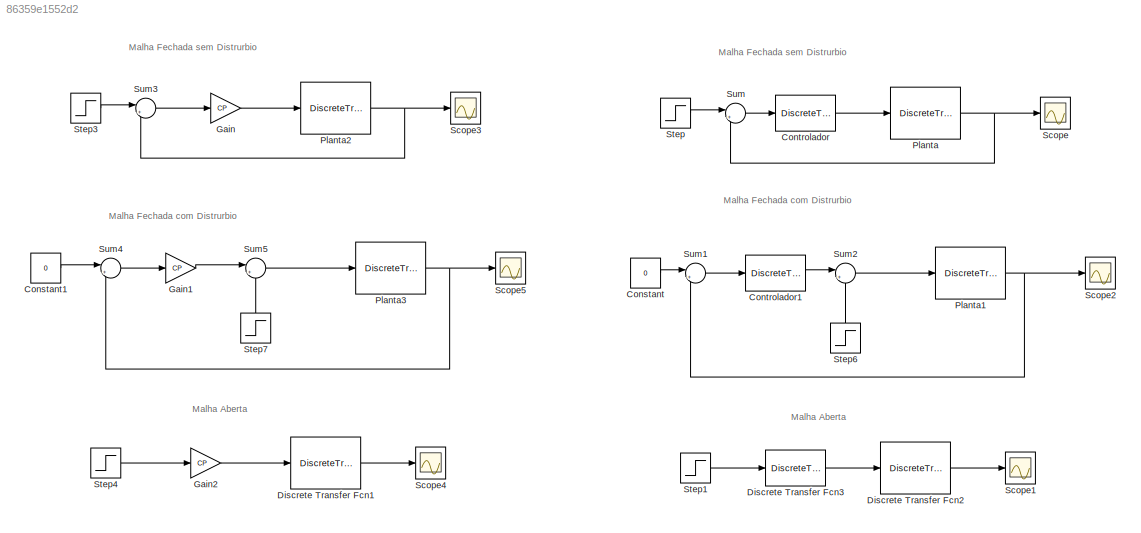
MODEL slx_86359e1552d2
KIND model
CONFIG AbsTol = auto
CONFIG EnableMultiTasking = off
CONFIG FixedStep = auto
CONFIG MaxStep = auto
CONFIG MinStep = auto
CONFIG RelTol = 1e-3
CONFIG SampleTimeConstraint = Unconstrained
CONFIG SolverName = VariableStepAuto
CONFIG StartTime = 0.0
CONFIG StopTime = 80
BLOCK [Constant] Constant
  Value = 0
BLOCK [Constant] Constant1
  Value = 0
BLOCK [DiscreteTransferFcn] Controlador
  Denominator = PI_disc.Denominator{1}
  InputPortMap = u0
  Numerator = PI_disc.Numerator{1}
BLOCK [DiscreteTransferFcn] Controlador1
  Denominator = PI_disc.Denominator{1}
  InputPortMap = u0
  Numerator = PI_disc.Numerator{1}
BLOCK [DiscreteTransferFcn] Discrete Transfer Fcn1
  Denominator = G.Denominator{1}
  InputPortMap = u0
  Numerator = G.Numerator{1}
BLOCK [DiscreteTransferFcn] Discrete Transfer Fcn2
  Denominator = G.Denominator{1}
  InputPortMap = u0
  Numerator = G.Numerator{1}
BLOCK [DiscreteTransferFcn] Discrete Transfer Fcn3
  Denominator = PI_disc.Denominator{1}
  InputPortMap = u0
  Numerator = 0.045*PI_disc.Numerator{1}
BLOCK [Gain] Gain
  Gain = CP
BLOCK [Gain] Gain1
  Gain = CP
BLOCK [Gain] Gain2
  Gain = CP
BLOCK [DiscreteTransferFcn] Planta
  Denominator = G.Denominator{1}
  InputPortMap = u0
  Numerator = G.Numerator{1}
BLOCK [DiscreteTransferFcn] Planta1
  Denominator = G.Denominator{1}
  InputPortMap = u0
  Numerator = G.Numerator{1}
BLOCK [DiscreteTransferFcn] Planta2
  Denominator = G.Denominator{1}
  InputPortMap = u0
  Numerator = G.Numerator{1}
BLOCK [DiscreteTransferFcn] Planta3
  Denominator = G.Denominator{1}
  InputPortMap = u0
  Numerator = G.Numerator{1}
BLOCK [Scope] Scope
  Floating = off
  NumInputPorts = 1
  ScopeSpecificationString = Simulink.scopes.TimeScopeBlockCfg('CurrentConfiguration', extmgr.ConfigurationSet(extmgr.Configuration('Core','General UI',true),extmgr.Configuration('Core','Source UI',true),extmgr.Configuration('Sources','WiredSimulink',true),extmgr.Configuration('Visuals','Time Domain',true,'SerializedDisplays',{struct('MinYLimReal','-0.14408','MaxYLimReal','1.29668','YLabelReal','','MinYLimMag','0.00000','MaxY...<+1679ch>
BLOCK [Scope] Scope1
  Floating = off
  NumInputPorts = 1
  ScopeSpecificationString = Simulink.scopes.TimeScopeBlockCfg('CurrentConfiguration', extmgr.ConfigurationSet(extmgr.Configuration('Core','General UI',true),extmgr.Configuration('Core','Source UI',true),extmgr.Configuration('Sources','WiredSimulink',true,'DataLoggingVariableName','ScopeData1'),extmgr.Configuration('Visuals','Time Domain',true,'SerializedDisplays',{struct('MinYLimReal','-0.14379','MaxYLimReal','1.29411','YLab...<+1409ch>
BLOCK [Scope] Scope2
  Floating = off
  NumInputPorts = 1
  ScopeSpecificationString = Simulink.scopes.TimeScopeBlockCfg('CurrentConfiguration', extmgr.ConfigurationSet(extmgr.Configuration('Core','General UI',true),extmgr.Configuration('Core','Source UI',true),extmgr.Configuration('Sources','WiredSimulink',true,'DataLoggingVariableName','ScopeData2'),extmgr.Configuration('Visuals','Time Domain',true,'SerializedDisplays',{struct('MinYLimReal','-0.22482','MaxYLimReal','2.02338','YLab...<+1722ch>
BLOCK [Scope] Scope3
  Floating = off
  NumInputPorts = 1
  ScopeSpecificationString = Simulink.scopes.TimeScopeBlockCfg('CurrentConfiguration', extmgr.ConfigurationSet(extmgr.Configuration('Core','General UI',true),extmgr.Configuration('Core','Source UI',true),extmgr.Configuration('Sources','WiredSimulink',true,'DataLoggingVariableName','ScopeData3'),extmgr.Configuration('Visuals','Time Domain',true,'SerializedDisplays',{struct('MinYLimReal','-0.14379','MaxYLimReal','1.29411','YLab...<+1394ch>
BLOCK [Scope] Scope4
  Floating = off
  NumInputPorts = 1
  ScopeSpecificationString = Simulink.scopes.TimeScopeBlockCfg('CurrentConfiguration', extmgr.ConfigurationSet(extmgr.Configuration('Core','General UI',true),extmgr.Configuration('Core','Source UI',true),extmgr.Configuration('Sources','WiredSimulink',true,'DataLoggingVariableName','ScopeData4'),extmgr.Configuration('Visuals','Time Domain',true,'SerializedDisplays',{struct('MinYLimReal','-0.14379','MaxYLimReal','1.29411','YLab...<+1409ch>
BLOCK [Scope] Scope5
  Floating = off
  NumInputPorts = 1
  ScopeSpecificationString = Simulink.scopes.TimeScopeBlockCfg('CurrentConfiguration', extmgr.ConfigurationSet(extmgr.Configuration('Core','General UI',true),extmgr.Configuration('Core','Source UI',true),extmgr.Configuration('Sources','WiredSimulink',true,'DataLoggingVariableName','ScopeData5'),extmgr.Configuration('Visuals','Time Domain',true,'SerializedDisplays',{struct('MinYLimReal','-0.33816','MaxYLimReal','3.04343','YLab...<+1691ch>
BLOCK [Step] Step
  SampleTime = 0.1
  Time = 0
BLOCK [Step] Step1
  SampleTime = 0.1
  Time = 0
BLOCK [Step] Step3
  SampleTime = 0.1
  Time = 0
BLOCK [Step] Step4
  SampleTime = 0.1
  Time = 0
BLOCK [Step] Step6
  After = 0.1
  NameLocation = right
  SampleTime = 0.1
  Time = 5
BLOCK [Step] Step7
  After = 0.1
  NameLocation = right
  SampleTime = 0.1
  Time = 2
BLOCK [Sum] Sum
  Inputs = |+-
BLOCK [Sum] Sum1
  Inputs = |+-
BLOCK [Sum] Sum2
  Inputs = |++
BLOCK [Sum] Sum3
  Inputs = |+-
BLOCK [Sum] Sum4
  Inputs = |+-
BLOCK [Sum] Sum5
  Inputs = |++
ANNOTATION (root): Malha Aberta
ANNOTATION (root): Malha Fechada com Distrurbio
ANNOTATION (root): Malha Fechada sem Distrurbio
LINE Constant1:1 -> Sum4:1
LINE Constant:1 -> Sum1:1
LINE Controlador1:1 -> Sum2:1
LINE Controlador:1 -> Planta:1
LINE Discrete Transfer Fcn1:1 -> Scope4:1
LINE Discrete Transfer Fcn2:1 -> Scope1:1
LINE Discrete Transfer Fcn3:1 -> Discrete Transfer Fcn2:1
LINE Gain1:1 -> Sum5:1
LINE Gain2:1 -> Discrete Transfer Fcn1:1
LINE Gain:1 -> Planta2:1
NET Planta1:1 -> Scope2:1, Sum1:2
NET Planta2:1 -> Scope3:1, Sum3:2
NET Planta3:1 -> Scope5:1, Sum4:2
NET Planta:1 -> Scope:1, Sum:2
LINE Step1:1 -> Discrete Transfer Fcn3:1
LINE Step3:1 -> Sum3:1
LINE Step4:1 -> Gain2:1
LINE Step6:1 -> Sum2:2
LINE Step7:1 -> Sum5:2
LINE Step:1 -> Sum:1
LINE Sum1:1 -> Controlador1:1
LINE Sum2:1 -> Planta1:1
LINE Sum3:1 -> Gain:1
LINE Sum4:1 -> Gain1:1
LINE Sum5:1 -> Planta3:1
LINE Sum:1 -> Controlador:1
note: NET lines group one-source signal fan-out (src -> all destinations, sorted); 1:1 wires keep LINE
